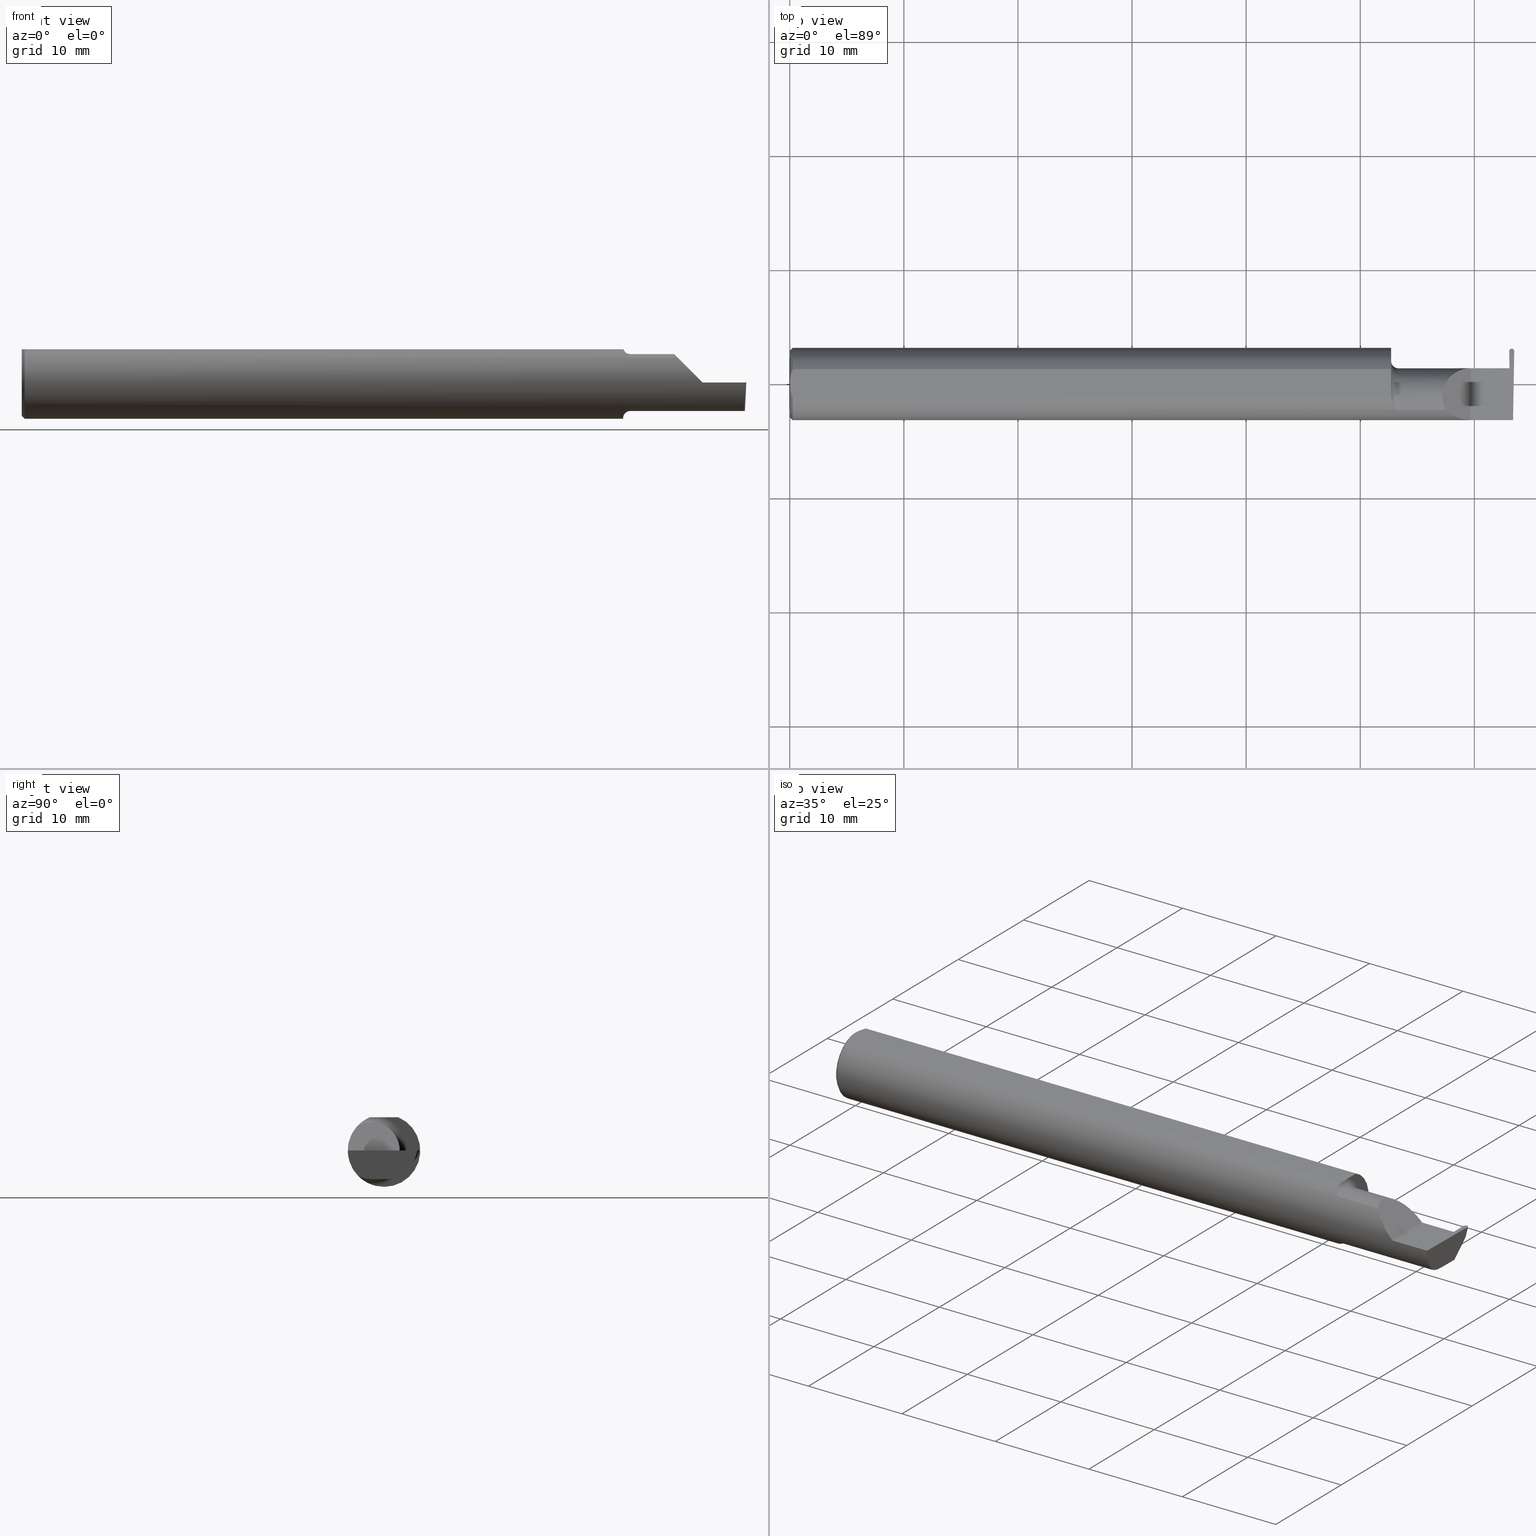
[diagram: canonical four-view strip — front | top / right | iso, engineering-drawing reading convention]
A machine part, canonical four-view strip (front | top / right | iso — engineering-drawing reading convention). The complete STEP part file that produces these views, byte-faithful:
ISO-10303-21;
HEADER;
FILE_DESCRIPTION (( 'STEP AP203' ),
    '1' );
FILE_NAME ('221915-GFR017Q-6.STEP',
    '2024-06-17T18:38:43',
    ( '' ),
    ( '' ),
    'SwSTEP 2.0',
    'SolidWorks 2022',
    '' );
FILE_SCHEMA (( 'CONFIG_CONTROL_DESIGN' ));
ENDSEC;

DATA;
#1 = VECTOR ( 'NONE', #328, 39.37007874015748854 ) ;
#2 = LINE ( 'NONE', #594, #1 ) ;
#3 = CARTESIAN_POINT ( 'NONE',  ( 2.477090476183632539, 0.05376127692546275177, -0.006836134426924101760 ) ) ;
#4 = ORIENTED_EDGE ( 'NONE', *, *, #478, .F. ) ;
#5 = EDGE_CURVE ( 'NONE', #608, #683, #290, .T. ) ;
#6 = EDGE_LOOP ( 'NONE', ( #4, #154, #442, #65, #297 ) ) ;
#7 = CARTESIAN_POINT ( 'NONE',  ( 0.01000000000000042348, 0.000000000000000000, -0.1250000000000000000 ) ) ;
#8 =( LENGTH_UNIT ( ) NAMED_UNIT ( * ) SI_UNIT ( $, .METRE. ) );
#9 = EDGE_LOOP ( 'NONE', ( #541, #293, #372, #595, #111 ) ) ;
#10 = CYLINDRICAL_SURFACE ( 'NONE', #633, 0.09800000000000007316 ) ;
#11 = AXIS2_PLACEMENT_3D ( 'NONE', #23, #81, #519 ) ;
#12 = CARTESIAN_POINT ( 'NONE',  ( 2.076184456069788187, -0.03277259381710939667, 0.1149999999999999356 ) ) ;
#13 = DATE_AND_TIME ( #386, #53 ) ;
#14 = ORIENTED_EDGE ( 'NONE', *, *, #243, .F. ) ;
#15 = EDGE_CURVE ( 'NONE', #87, #37, #658, .T. ) ;
#16 = CC_DESIGN_PERSON_AND_ORGANIZATION_ASSIGNMENT ( #215, #232, ( #20 ) ) ;
#17 = VERTEX_POINT ( 'NONE', #403 ) ;
#18 = EDGE_CURVE ( 'NONE', #452, #495, #387, .T. ) ;
#19 = DIRECTION ( 'NONE',  ( -1.000000000000000000, 1.257036449194457259E-16, -0.000000000000000000 ) ) ;
#20 = SECURITY_CLASSIFICATION ( '', '', #663 ) ;
#21 = CARTESIAN_POINT ( 'NONE',  ( 2.495931522036096695, 0.1129002240869102780, -0.02483591319413773826 ) ) ;
#22 = EDGE_CURVE ( 'NONE', #37, #180, #174, .T. ) ;
#23 = CARTESIAN_POINT ( 'NONE',  ( -3.937007874019685528E-05, 0.1137361372810480054, -0.02400000000000000050 ) ) ;
#24 =( BOUNDED_CURVE ( )  B_SPLINE_CURVE ( 3, ( #63, #266, #222, #600 ),
 .UNSPECIFIED., .F., .T. ) 
 B_SPLINE_CURVE_WITH_KNOTS ( ( 4, 4 ),
 ( 6.253187659403602439, 6.746650124384888869 ),
 .UNSPECIFIED. ) 
 CURVE ( )  GEOMETRIC_REPRESENTATION_ITEM ( )  RATIONAL_B_SPLINE_CURVE ( ( 1.000000000000000000, 0.9798106333074692031, 0.9798106333074692031, 1.000000000000000000 ) ) 
 REPRESENTATION_ITEM ( '' )  );
#25 = CARTESIAN_POINT ( 'NONE',  ( 2.483516143673287768, 0.05399999999999997163, 0.000000000000000000 ) ) ;
#26 = CARTESIAN_POINT ( 'NONE',  ( 2.487309710820275743, -2.433500170848689415, -0.02001865397949318184 ) ) ;
#27 = LINE ( 'NONE', #247, #246 ) ;
#28 = ORIENTED_EDGE ( 'NONE', *, *, #159, .T. ) ;
#29 = VECTOR ( 'NONE', #197, 39.37007874015748854 ) ;
#30 = CC_DESIGN_DATE_AND_TIME_ASSIGNMENT ( #13, #659, ( #376 ) ) ;
#31 = CARTESIAN_POINT ( 'NONE',  ( 2.487116141968339189, -0.04422966076191083007, -0.09800000000000008704 ) ) ;
#32 = CARTESIAN_POINT ( 'NONE',  ( 2.091446811421532104, -0.08721672169474524450, 0.08955973280246720680 ) ) ;
#33 = FACE_OUTER_BOUND ( 'NONE', #686, .T. ) ;
#34 = VERTEX_POINT ( 'NONE', #291 ) ;
#35 = EDGE_CURVE ( 'NONE', #17, #520, #642, .T. ) ;
#36 = CARTESIAN_POINT ( 'NONE',  ( 2.483516143673287768, 0.05399999999999997163, 0.000000000000000000 ) ) ;
#37 = VERTEX_POINT ( 'NONE', #100 ) ;
#38 = CARTESIAN_POINT ( 'NONE',  ( 2.486551887963902807, 0.1129002240869108470, -0.02483591319413719703 ) ) ;
#39 = CARTESIAN_POINT ( 'NONE',  ( 2.085996102358147475, -0.08116363444194581167, 0.09515685373905029276 ) ) ;
#40 = CARTESIAN_POINT ( 'NONE',  ( 0.000000000000000000, 0.000000000000000000, 0.000000000000000000 ) ) ;
#41 = ORIENTED_EDGE ( 'NONE', *, *, #18, .F. ) ;
#42 = LOCAL_TIME ( 11, 38, 43.00000000000000000, #441 ) ;
#43 = ORIENTED_EDGE ( 'NONE', *, *, #605, .F. ) ;
#44 = CIRCLE ( 'NONE', #421, 0.1230000000000000121 ) ;
#45 = DIRECTION ( 'NONE',  ( 1.000000000000000000, 0.000000000000000000, 0.000000000000000000 ) ) ;
#46 = EDGE_LOOP ( 'NONE', ( #329, #674, #392, #99, #661, #49, #498, #106, #235, #418 ) ) ;
#47 = DIRECTION ( 'NONE',  ( -1.000000000000000000, 0.000000000000000000, 1.224646799147352468E-16 ) ) ;
#48 = ORIENTED_EDGE ( 'NONE', *, *, #547, .F. ) ;
#49 = ORIENTED_EDGE ( 'NONE', *, *, #5, .F. ) ;
#50 = CARTESIAN_POINT ( 'NONE',  ( 2.500000000000000000, -0.2500000000000000555, 0.000000000000000000 ) ) ;
#51 =( BOUNDED_CURVE ( )  B_SPLINE_CURVE ( 3, ( #260, #461, #38, #533 ),
 .UNSPECIFIED., .F., .T. ) 
 B_SPLINE_CURVE_WITH_KNOTS ( ( 4, 4 ),
 ( 4.726121454046339210, 6.201952002335866077 ),
 .UNSPECIFIED. ) 
 CURVE ( )  GEOMETRIC_REPRESENTATION_ITEM ( )  RATIONAL_B_SPLINE_CURVE ( ( 1.000000000000000000, 0.8265817722885200336, 0.8265817722885200336, 1.000000000000000000 ) ) 
 REPRESENTATION_ITEM ( '' )  );
#52 = VERTEX_POINT ( 'NONE', #353 ) ;
#53 = LOCAL_TIME ( 11, 38, 43.00000000000000000, #167 ) ;
#54 = EDGE_CURVE ( 'NONE', #611, #532, #51, .T. ) ;
#55 = DIRECTION ( 'NONE',  ( 0.000000000000000000, -0.9455185755993166241, 0.3255681544571570885 ) ) ;
#56 = CONICAL_SURFACE ( 'NONE', #182, 0.1149999999999997274, 0.7853981633974407295 ) ;
#57 = MANIFOLD_SOLID_BREP ( 'Radii', #567 ) ;
#58 = ORIENTED_EDGE ( 'NONE', *, *, #224, .F. ) ;
#59 = CARTESIAN_POINT ( 'NONE',  ( 2.075000000000000178, 0.1249999999999999445, 0.000000000000000000 ) ) ;
#60 = EDGE_CURVE ( 'NONE', #75, #217, #78, .T. ) ;
#61 = APPROVAL_ROLE ( '' ) ;
#62 = ORIENTED_EDGE ( 'NONE', *, *, #289, .T. ) ;
#63 = CARTESIAN_POINT ( 'NONE',  ( 2.493431982762754462, -0.09042045454545434569, -0.08630840862739522223 ) ) ;
#64 = DATE_TIME_ROLE ( 'classification_date' ) ;
#65 = ORIENTED_EDGE ( 'NONE', *, *, #412, .F. ) ;
#66 = CARTESIAN_POINT ( 'NONE',  ( 2.482396552658129973, 0.1181413263005396674, 1.815796599807465209E-17 ) ) ;
#67 = CARTESIAN_POINT ( 'NONE',  ( 2.477329199258169634, 0.05399999999999997163, 0.000000000000000000 ) ) ;
#68 = VECTOR ( 'NONE', #306, 39.37007874015748143 ) ;
#69 = EDGE_CURVE ( 'NONE', #683, #132, #480, .T. ) ;
#70 = APPROVAL_STATUS ( 'not_yet_approved' ) ;
#71 = EDGE_LOOP ( 'NONE', ( #463, #48, #373 ) ) ;
#72 = APPROVAL_STATUS ( 'not_yet_approved' ) ;
#73 = DIRECTION ( 'NONE',  ( -1.000000000000000000, -0.000000000000000000, -0.000000000000000000 ) ) ;
#74 = CARTESIAN_POINT ( 'NONE',  ( 2.498829776079762421, 0.1072077918165300486, -0.03052834546451806477 ) ) ;
#75 = VERTEX_POINT ( 'NONE', #473 ) ;
#76 = ADVANCED_FACE ( 'NONE', ( #629 ), #692, .T. ) ;
#77 =( BOUNDED_CURVE ( )  B_SPLINE_CURVE ( 3, ( #620, #578, #568, #631 ),
 .UNSPECIFIED., .F., .T. ) 
 B_SPLINE_CURVE_WITH_KNOTS ( ( 4, 4 ),
 ( 5.789722842198293584, 7.853981633974482790 ),
 .UNSPECIFIED. ) 
 CURVE ( )  GEOMETRIC_REPRESENTATION_ITEM ( )  RATIONAL_B_SPLINE_CURVE ( ( 1.000000000000000000, 0.6753281001527238203, 0.6753281001527238203, 1.000000000000000000 ) ) 
 REPRESENTATION_ITEM ( '' )  );
#78 = CIRCLE ( 'NONE', #402, 0.1250000000000000000 ) ;
#79 = DIRECTION ( 'NONE',  ( -0.01745240643727528213, -0.9998476951563914916, 0.000000000000000000 ) ) ;
#80 =( BOUNDED_CURVE ( )  B_SPLINE_CURVE ( 3, ( #230, #662, #173, #426 ),
 .UNSPECIFIED., .F., .T. ) 
 B_SPLINE_CURVE_WITH_KNOTS ( ( 4, 4 ),
 ( 1.677524580234106333, 3.253450286950926529 ),
 .UNSPECIFIED. ) 
 CURVE ( )  GEOMETRIC_REPRESENTATION_ITEM ( )  RATIONAL_B_SPLINE_CURVE ( ( 1.000000000000000000, 0.8035272986452476340, 0.8035272986452476340, 1.000000000000000000 ) ) 
 REPRESENTATION_ITEM ( '' )  );
#81 = DIRECTION ( 'NONE',  ( 0.000000000000000000, -0.7071067811865514585, 0.7071067811865435759 ) ) ;
#82 = ORIENTED_EDGE ( 'NONE', *, *, #274, .T. ) ;
#83 = CARTESIAN_POINT ( 'NONE',  ( 2.487115857322145018, -0.04400000000000009459, -0.09800000000000008704 ) ) ;
#84 = CARTESIAN_POINT ( 'NONE',  ( 2.487625705767810835, 0.09065177128393964168, -0.09104186683305189043 ) ) ;
#85 = EDGE_CURVE ( 'NONE', #405, #520, #640, .T. ) ;
#86 = CARTESIAN_POINT ( 'NONE',  ( 2.491241705000000195, 0.1136654917638221379, -0.02407064551722588180 ) ) ;
#87 = VERTEX_POINT ( 'NONE', #141 ) ;
#88 = CARTESIAN_POINT ( 'NONE',  ( 2.080932841370987774, -0.07048791403321993942, -0.1034389270157552027 ) ) ;
#89 = CARTESIAN_POINT ( 'NONE',  ( 2.084055883886138272, -0.07758562614434452720, 0.09811804109501713611 ) ) ;
#90 = CARTESIAN_POINT ( 'NONE',  ( 2.491241705000000195, 0.1136654917638221379, -0.02407064551722588180 ) ) ;
#91 = VECTOR ( 'NONE', #314, 39.37007874015748143 ) ;
#92 = EDGE_CURVE ( 'NONE', #524, #590, #152, .T. ) ;
#93 = VECTOR ( 'NONE', #219, 39.37007874015748143 ) ;
#94 = PLANE ( 'NONE',  #432 ) ;
#95 = PLANE ( 'NONE',  #657 ) ;
#96 = ORIENTED_EDGE ( 'NONE', *, *, #139, .T. ) ;
#97 = CARTESIAN_POINT ( 'NONE',  ( 0.006956794985978487743, -0.04122489957750442163, 0.1149999999999999356 ) ) ;
#98 = DIRECTION ( 'NONE',  ( 0.000000000000000000, 0.000000000000000000, -1.000000000000000000 ) ) ;
#99 = ORIENTED_EDGE ( 'NONE', *, *, #450, .T. ) ;
#100 = CARTESIAN_POINT ( 'NONE',  ( 2.350000000000000089, -0.1250000000000000278, 1.836970198721028825E-17 ) ) ;
#101 = EDGE_CURVE ( 'NONE', #405, #120, #244, .T. ) ;
#102 = CARTESIAN_POINT ( 'NONE',  ( 0.000000000000000000, 0.000000000000000000, 0.000000000000000000 ) ) ;
#103 =( BOUNDED_CURVE ( )  B_SPLINE_CURVE ( 3, ( #251, #457, #414, #86 ),
 .UNSPECIFIED., .F., .F. ) 
 B_SPLINE_CURVE_WITH_KNOTS ( ( 4, 4 ),
 ( 1.570796326794872355, 1.670891485222194550 ),
 .UNSPECIFIED. ) 
 CURVE ( )  GEOMETRIC_REPRESENTATION_ITEM ( )  RATIONAL_B_SPLINE_CURVE ( ( 1.000000000000000000, 0.9991652541966116186, 0.9991652541966116186, 1.000000000000000000 ) ) 
 REPRESENTATION_ITEM ( '' )  );
#104 = EDGE_LOOP ( 'NONE', ( #382, #453, #641 ) ) ;
#105 = DIRECTION ( 'NONE',  ( -1.000000000000000000, 1.257036449194457259E-16, -0.000000000000000000 ) ) ;
#106 = ORIENTED_EDGE ( 'NONE', *, *, #85, .F. ) ;
#107 = DIRECTION ( 'NONE',  ( -1.000000000000000000, 1.257036449194457259E-16, -0.000000000000000000 ) ) ;
#108 = EDGE_CURVE ( 'NONE', #560, #472, #485, .T. ) ;
#109 = ORIENTED_EDGE ( 'NONE', *, *, #128, .T. ) ;
#110 = DIRECTION ( 'NONE',  ( -0.03701368837992363020, -0.7066222423871550973, -0.7066222423871629799 ) ) ;
#111 = ORIENTED_EDGE ( 'NONE', *, *, #464, .T. ) ;
#112 = ADVANCED_FACE ( 'NONE', ( #370 ), #94, .T. ) ;
#113 = AXIS2_PLACEMENT_3D ( 'NONE', #282, #612, #511 ) ;
#114 = FACE_OUTER_BOUND ( 'NONE', #252, .T. ) ;
#115 = VECTOR ( 'NONE', #133, 39.37007874015748854 ) ;
#116 = APPROVAL_STATUS ( 'not_yet_approved' ) ;
#117 = VERTEX_POINT ( 'NONE', #308 ) ;
#118 = CARTESIAN_POINT ( 'NONE',  ( -3.937007874019685528E-05, 0.1219999999999999835, 0.000000000000000000 ) ) ;
#119 = PERSON_AND_ORGANIZATION_ROLE ( 'creator' ) ;
#120 = VERTEX_POINT ( 'NONE', #420 ) ;
#121 = CARTESIAN_POINT ( 'NONE',  ( 2.485980426908312779, 0.1220000000000002333, 1.771906798517136265E-17 ) ) ;
#122 = FACE_OUTER_BOUND ( 'NONE', #396, .T. ) ;
#123 = ORIENTED_EDGE ( 'NONE', *, *, #265, .F. ) ;
#124 = AXIS2_PLACEMENT_3D ( 'NONE', #36, #587, #529 ) ;
#125 = DATE_AND_TIME ( #346, #42 ) ;
#126 = ORIENTED_EDGE ( 'NONE', *, *, #101, .F. ) ;
#127 = ORIENTED_EDGE ( 'NONE', *, *, #616, .T. ) ;
#128 = EDGE_CURVE ( 'NONE', #696, #87, #660, .T. ) ;
#129 = PRODUCT_DEFINITION_SHAPE ( 'NONE', 'NONE',  #376 ) ;
#130 = VECTOR ( 'NONE', #315, 39.37007874015748854 ) ;
#131 = LINE ( 'NONE', #140, #281 ) ;
#132 = VERTEX_POINT ( 'NONE', #634 ) ;
#133 = DIRECTION ( 'NONE',  ( -0.03549161113179514354, 0.03487750912278164694, 0.9987611851171729338 ) ) ;
#134 = CARTESIAN_POINT ( 'NONE',  ( 2.477170050541811719, 0.05384085128364182737, -0.004557422951282729881 ) ) ;
#135 = LINE ( 'NONE', #574, #559 ) ;
#136 = ORIENTED_EDGE ( 'NONE', *, *, #162, .T. ) ;
#137 = CARTESIAN_POINT ( 'NONE',  ( 2.098259114367880596, -0.09042045454545440120, -0.08630840862739518060 ) ) ;
#138 = DIRECTION ( 'NONE',  ( 1.000000000000000000, 0.000000000000000000, 0.000000000000000000 ) ) ;
#139 = EDGE_CURVE ( 'NONE', #75, #452, #510, .T. ) ;
#140 = CARTESIAN_POINT ( 'NONE',  ( 2.350000000000000089, -0.2500000000000000555, 1.836970198721028825E-17 ) ) ;
#141 = CARTESIAN_POINT ( 'NONE',  ( 2.495842809704562626, -0.1250000000000000000, 0.000000000000000000 ) ) ;
#142 = DIRECTION ( 'NONE',  ( 0.000000000000000000, 0.000000000000000000, 1.000000000000000000 ) ) ;
#143 = CARTESIAN_POINT ( 'NONE',  ( 2.077426556614085928, -0.05801934803182533240, 0.1111534264545090966 ) ) ;
#144 = DIRECTION ( 'NONE',  ( 1.000000000000000000, 0.000000000000000000, 0.000000000000000000 ) ) ;
#145 = AXIS2_PLACEMENT_3D ( 'NONE', #26, #254, #693 ) ;
#146 = CIRCLE ( 'NONE', #270, 0.1149999999999997274 ) ;
#147 = VERTEX_POINT ( 'NONE', #385 ) ;
#148 = CARTESIAN_POINT ( 'NONE',  ( 2.493431982762754462, -0.09042045454545434569, -0.08630840862739522223 ) ) ;
#149 = CARTESIAN_POINT ( 'NONE',  ( 2.672413070268786939, -0.04400000000000041378, -0.09800000000000008704 ) ) ;
#150 = ORIENTED_EDGE ( 'NONE', *, *, #345, .F. ) ;
#151 = EDGE_CURVE ( 'NONE', #117, #611, #499, .T. ) ;
#152 = LINE ( 'NONE', #521, #445 ) ;
#153 = CARTESIAN_POINT ( 'NONE',  ( 2.482484743930750248, 0.1130888516759625262, 0.000000000000000000 ) ) ;
#154 = ORIENTED_EDGE ( 'NONE', *, *, #534, .F. ) ;
#155 = DIRECTION ( 'NONE',  ( 1.000000000000000000, -1.257036449194457259E-16, 0.000000000000000000 ) ) ;
#156 = ORIENTED_EDGE ( 'NONE', *, *, #274, .F. ) ;
#157 = AXIS2_PLACEMENT_3D ( 'NONE', #550, #334, #434 ) ;
#158 = CARTESIAN_POINT ( 'NONE',  ( 2.076278290187167919, -0.04898979485481608914, 0.1149999999999999217 ) ) ;
#159 = EDGE_CURVE ( 'NONE', #696, #147, #24, .T. ) ;
#160 = ORIENTED_EDGE ( 'NONE', *, *, #412, .T. ) ;
#161 = LINE ( 'NONE', #324, #454 ) ;
#162 = EDGE_CURVE ( 'NONE', #650, #560, #669, .T. ) ;
#163 = FACE_OUTER_BOUND ( 'NONE', #509, .T. ) ;
#164 = ORIENTED_EDGE ( 'NONE', *, *, #85, .T. ) ;
#165 = CARTESIAN_POINT ( 'NONE',  ( 1.541666659510484467E-16, -0.008419750986449443114, 0.1149999999999999356 ) ) ;
#166 = LINE ( 'NONE', #287, #93 ) ;
#167 = COORDINATED_UNIVERSAL_TIME_OFFSET ( 8, 0, .BEHIND. ) ;
#168 = VERTEX_POINT ( 'NONE', #700 ) ;
#169 = LINE ( 'NONE', #496, #474 ) ;
#170 = VECTOR ( 'NONE', #486, 39.37007874015748143 ) ;
#171 = ORIENTED_EDGE ( 'NONE', *, *, #597, .F. ) ;
#172 = EDGE_CURVE ( 'NONE', #120, #225, #644, .T. ) ;
#173 = CARTESIAN_POINT ( 'NONE',  ( 2.496502983091687611, 0.1220000000000001916, -1.771906798517135649E-17 ) ) ;
#174 =( BOUNDED_CURVE ( )  B_SPLINE_CURVE ( 3, ( #178, #295, #516, #571 ),
 .UNSPECIFIED., .F., .T. ) 
 B_SPLINE_CURVE_WITH_KNOTS ( ( 4, 4 ),
 ( 4.712388980384689674, 5.474523801125204869 ),
 .UNSPECIFIED. ) 
 CURVE ( )  GEOMETRIC_REPRESENTATION_ITEM ( )  RATIONAL_B_SPLINE_CURVE ( ( 1.000000000000000000, 0.9521787881681385013, 0.9521787881681385013, 1.000000000000000000 ) ) 
 REPRESENTATION_ITEM ( '' )  );
#175 = ADVANCED_FACE ( 'NONE', ( #383 ), #10, .T. ) ;
#176 = COORDINATED_UNIVERSAL_TIME_OFFSET ( 8, 0, .BEHIND. ) ;
#177 = ORIENTED_EDGE ( 'NONE', *, *, #172, .T. ) ;
#178 = CARTESIAN_POINT ( 'NONE',  ( 2.350000000000000089, -0.1250000000000000278, 1.836970198721028825E-17 ) ) ;
#179 = CARTESIAN_POINT ( 'NONE',  ( 0.01000000000000042348, 0.000000000000000000, 0.000000000000000000 ) ) ;
#180 = VERTEX_POINT ( 'NONE', #389 ) ;
#181 = CIRCLE ( 'NONE', #237, 0.1250000000000000000 ) ;
#182 = AXIS2_PLACEMENT_3D ( 'NONE', #207, #144, #368 ) ;
#183 = CC_DESIGN_PERSON_AND_ORGANIZATION_ASSIGNMENT ( #613, #288, ( #656 ) ) ;
#184 = EDGE_CURVE ( 'NONE', #472, #168, #181, .T. ) ;
#185 = LINE ( 'NONE', #458, #68 ) ;
#186 = PRODUCT_RELATED_PRODUCT_CATEGORY ( 'detail', '', ( #351 ) ) ;
#187 = LINE ( 'NONE', #627, #675 ) ;
#188 = EDGE_CURVE ( 'NONE', #650, #180, #226, .T. ) ;
#189 = CARTESIAN_POINT ( 'NONE',  ( 0.01000000000000042348, 0.000000000000000000, 0.000000000000000000 ) ) ;
#190 = DIRECTION ( 'NONE',  ( -1.000000000000000000, -0.000000000000000000, -0.000000000000000000 ) ) ;
#191 = LINE ( 'NONE', #407, #408 ) ;
#192 = CARTESIAN_POINT ( 'NONE',  ( 2.096593478233292007, -0.08999923832592932049, -0.08675238105120941512 ) ) ;
#193 = DIRECTION ( 'NONE',  ( 0.000000000000000000, 0.000000000000000000, 1.000000000000000000 ) ) ;
#194 = CARTESIAN_POINT ( 'NONE',  ( 2.075000000000000178, -0.02763636363636362211, -0.1219066503721543265 ) ) ;
#195 =( BOUNDED_CURVE ( )  B_SPLINE_CURVE ( 3, ( #340, #121, #66, #280 ),
 .UNSPECIFIED., .F., .F. ) 
 B_SPLINE_CURVE_WITH_KNOTS ( ( 4, 4 ),
 ( 6.171327673818449711, 7.747253380535275902 ),
 .UNSPECIFIED. ) 
 CURVE ( )  GEOMETRIC_REPRESENTATION_ITEM ( )  RATIONAL_B_SPLINE_CURVE ( ( 1.000000000000000000, 0.8035272986452463018, 0.8035272986452463018, 1.000000000000000000 ) ) 
 REPRESENTATION_ITEM ( '' )  );
#196 = ORIENTED_EDGE ( 'NONE', *, *, #645, .T. ) ;
#197 = DIRECTION ( 'NONE',  ( -0.03549161113179514354, 0.03487750912278164694, 0.9987611851171729338 ) ) ;
#198 = PLANE ( 'NONE',  #294 ) ;
#199 = ADVANCED_FACE ( 'NONE', ( #114 ), #542, .F. ) ;
#200 = VECTOR ( 'NONE', #655, 39.37007874015748854 ) ;
#201 = ORIENTED_EDGE ( 'NONE', *, *, #562, .T. ) ;
#202 = CARTESIAN_POINT ( 'NONE',  ( 2.493862026000344123, -0.1128945894460738480, -0.06276352435079120273 ) ) ;
#203 = B_SPLINE_CURVE_WITH_KNOTS ( 'NONE', 3,
 ( #601, #501, #12, #341, #508, #231 ),
 .UNSPECIFIED., .F., .F.,
 ( 4, 2, 4 ),
 ( 0.009319464280412734225, 0.009934044568948269954, 0.01054862485748380568 ),
 .UNSPECIFIED. ) ;
#204 = ORIENTED_EDGE ( 'NONE', *, *, #285, .T. ) ;
#205 = DIRECTION ( 'NONE',  ( 0.000000000000000000, 0.9455185755993170682, -0.3255681544571562558 ) ) ;
#206 = CARTESIAN_POINT ( 'NONE',  ( 1.642610067308552155E-16, 0.01684316307400865464, 0.1149999999999999217 ) ) ;
#207 = CARTESIAN_POINT ( 'NONE',  ( 0.000000000000000000, 0.000000000000000000, 0.000000000000000000 ) ) ;
#208 = VERTEX_POINT ( 'NONE', #158 ) ;
#209 = ADVANCED_FACE ( 'NONE', ( #278 ), #380, .F. ) ;
#210 = LINE ( 'NONE', #327, #259 ) ;
#211 = CC_DESIGN_APPROVAL ( #455, ( #656 ) ) ;
#212 = CARTESIAN_POINT ( 'NONE',  ( 2.482486636428674398, 0.1127397658540112979, 0.0001202773598626459084 ) ) ;
#213 = ADVANCED_FACE ( 'NONE', ( #648 ), #598, .T. ) ;
#214 = ADVANCED_BREP_SHAPE_REPRESENTATION ( '221915-GFR017Q-6', ( #57, #236 ), #343 ) ;
#215 = PERSON_AND_ORGANIZATION ( #311, #459 ) ;
#216 = DESIGN_CONTEXT ( 'detailed design', #397, 'design' ) ;
#217 = VERTEX_POINT ( 'NONE', #7 ) ;
#218 = CARTESIAN_POINT ( 'NONE',  ( -3.937007874019685528E-05, 0.03973613728104874454, -0.09800000000000008704 ) ) ;
#219 = DIRECTION ( 'NONE',  ( -1.000000000000000000, -0.000000000000000000, -0.000000000000000000 ) ) ;
#220 = PERSON_AND_ORGANIZATION_ROLE ( 'design_supplier' ) ;
#221 = ORIENTED_EDGE ( 'NONE', *, *, #15, .T. ) ;
#222 = CARTESIAN_POINT ( 'NONE',  ( 2.493549648562250809, -0.06028551311893220327, -0.09800000000000001765 ) ) ;
#223 = LENGTH_MEASURE_WITH_UNIT ( LENGTH_MEASURE( 0.02539999999999999897 ), #8 );
#224 = EDGE_CURVE ( 'NONE', #326, #683, #169, .T. ) ;
#225 = VERTEX_POINT ( 'NONE', #337 ) ;
#226 = LINE ( 'NONE', #493, #305 ) ;
#227 = VECTOR ( 'NONE', #431, 39.37007874015748143 ) ;
#228 = APPROVAL_DATE_TIME ( #335, #455 ) ;
#229 = EDGE_LOOP ( 'NONE', ( #428, #41, #248, #316 ) ) ;
#230 = CARTESIAN_POINT ( 'NONE',  ( 2.499991849855255133, 0.1126983510377570219, 0.000000000000000000 ) ) ;
#231 = CARTESIAN_POINT ( 'NONE',  ( 2.075000000000000178, -0.0003651515414569473403, 0.1149999999999999217 ) ) ;
#232 = PERSON_AND_ORGANIZATION_ROLE ( 'classification_officer' ) ;
#233 = ORIENTED_EDGE ( 'NONE', *, *, #679, .T. ) ;
#234 = APPROVAL ( #70, 'UNSPECIFIED' ) ;
#235 = ORIENTED_EDGE ( 'NONE', *, *, #679, .F. ) ;
#236 = AXIS2_PLACEMENT_3D ( 'NONE', #309, #142, #530 ) ;
#237 = AXIS2_PLACEMENT_3D ( 'NONE', #271, #447, #591 ) ;
#238 = EDGE_CURVE ( 'NONE', #52, #524, #553, .T. ) ;
#239 = AXIS2_PLACEMENT_3D ( 'NONE', #275, #19, #652 ) ;
#240 = LINE ( 'NONE', #404, #526 ) ;
#241 = CARTESIAN_POINT ( 'NONE',  ( 2.491130782529545673, 0.1219999999999999835, 0.000000000000000000 ) ) ;
#242 = CARTESIAN_POINT ( 'NONE',  ( 0.000000000000000000, 3.414809992080329023E-17, 0.1149999999999999217 ) ) ;
#243 = EDGE_CURVE ( 'NONE', #34, #472, #44, .T. ) ;
#244 = LINE ( 'NONE', #31, #321 ) ;
#245 = CARTESIAN_POINT ( 'NONE',  ( 2.089945076695470583, -0.08578123596776227044, 0.09094459933486044589 ) ) ;
#246 = VECTOR ( 'NONE', #79, 39.37007874015747433 ) ;
#247 = CARTESIAN_POINT ( 'NONE',  ( 2.499998666069249253, 0.1130888516759625262, 0.000000000000000000 ) ) ;
#248 = ORIENTED_EDGE ( 'NONE', *, *, #398, .T. ) ;
#249 = DIRECTION ( 'NONE',  ( 0.000000000000000000, 0.000000000000000000, 1.000000000000000000 ) ) ;
#250 = FACE_OUTER_BOUND ( 'NONE', #664, .T. ) ;
#251 = CARTESIAN_POINT ( 'NONE',  ( 2.491241705000000195, 0.1210669986517045327, -0.002709632664605812237 ) ) ;
#252 = EDGE_LOOP ( 'NONE', ( #160, #437, #255 ) ) ;
#253 = CARTESIAN_POINT ( 'NONE',  ( 2.483516143673287768, 0.05399999999999997163, 0.000000000000000000 ) ) ;
#254 = DIRECTION ( 'NONE',  ( 0.9993699743034455407, 0.001238639365660611094, 0.03546999060124707975 ) ) ;
#255 = ORIENTED_EDGE ( 'NONE', *, *, #92, .T. ) ;
#256 = DIRECTION ( 'NONE',  ( 1.000000000000000000, -0.000000000000000000, -0.000000000000000000 ) ) ;
#257 = CARTESIAN_POINT ( 'NONE',  ( 2.483516143673287768, 0.05399999999999997163, 0.000000000000000000 ) ) ;
#258 = ORIENTED_EDGE ( 'NONE', *, *, #54, .T. ) ;
#259 = VECTOR ( 'NONE', #110, 39.37007874015748143 ) ;
#260 = CARTESIAN_POINT ( 'NONE',  ( 2.484054773108133052, 0.09954970949977201555, -0.03818642778127615683 ) ) ;
#261 = CARTESIAN_POINT ( 'NONE',  ( 2.075000000000000178, 0.05376127692546273096, -0.006836134426925153870 ) ) ;
#262 = CARTESIAN_POINT ( 'NONE',  ( 2.075000000000000178, -0.04400000000000004602, 0.000000000000000000 ) ) ;
#263 = FACE_OUTER_BOUND ( 'NONE', #617, .T. ) ;
#264 = ORIENTED_EDGE ( 'NONE', *, *, #616, .F. ) ;
#265 = EDGE_CURVE ( 'NONE', #17, #611, #161, .T. ) ;
#266 = CARTESIAN_POINT ( 'NONE',  ( 2.493412911089820660, -0.07607783494366283927, -0.09402249966297451800 ) ) ;
#267 = LINE ( 'NONE', #381, #614 ) ;
#268 = AXIS2_PLACEMENT_3D ( 'NONE', #118, #55, #330 ) ;
#269 = ORIENTED_EDGE ( 'NONE', *, *, #172, .F. ) ;
#270 = AXIS2_PLACEMENT_3D ( 'NONE', #40, #363, #476 ) ;
#271 = CARTESIAN_POINT ( 'NONE',  ( 2.075000000000000178, 0.000000000000000000, 0.000000000000000000 ) ) ;
#272 = EDGE_LOOP ( 'NONE', ( #654, #109, #221, #647, #628, #425, #446, #599, #322, #43, #336, #546 ) ) ;
#273 = DIRECTION ( 'NONE',  ( 1.257036449194457259E-16, 1.000000000000000000, 0.000000000000000000 ) ) ;
#274 = EDGE_CURVE ( 'NONE', #691, #225, #210, .T. ) ;
#275 = CARTESIAN_POINT ( 'NONE',  ( 2.100000000000000089, -0.04400000000000004602, 0.000000000000000000 ) ) ;
#276 = PERSON_AND_ORGANIZATION ( #311, #459 ) ;
#277 = ORIENTED_EDGE ( 'NONE', *, *, #398, .F. ) ;
#278 = FACE_OUTER_BOUND ( 'NONE', #279, .T. ) ;
#279 = EDGE_LOOP ( 'NONE', ( #603, #204, #171, #484, #58, #449, #549, #312, #544 ) ) ;
#280 = CARTESIAN_POINT ( 'NONE',  ( 2.482491560144744369, 0.1126983510377570080, 0.000000000000000000 ) ) ;
#281 = VECTOR ( 'NONE', #514, 39.37007874015748143 ) ;
#282 = CARTESIAN_POINT ( 'NONE',  ( 2.499998666069249253, 0.1130888516759625262, 0.000000000000000000 ) ) ;
#283 = APPROVAL_ROLE ( '' ) ;
#284 = ORIENTED_EDGE ( 'NONE', *, *, #18, .T. ) ;
#285 = EDGE_CURVE ( 'NONE', #524, #117, #195, .T. ) ;
#286 = CC_DESIGN_DATE_AND_TIME_ASSIGNMENT ( #561, #64, ( #20 ) ) ;
#287 = CARTESIAN_POINT ( 'NONE',  ( 2.672413070268786939, -0.04400000000000041378, -0.09800000000000008704 ) ) ;
#288 = PERSON_AND_ORGANIZATION_ROLE ( 'creator' ) ;
#289 = EDGE_CURVE ( 'NONE', #225, #147, #506, .T. ) ;
#290 = B_SPLINE_CURVE_WITH_KNOTS ( 'NONE', 3,
 ( #3, #134, #565, #67 ),
 .UNSPECIFIED., .F., .F.,
 ( 4, 4 ),
 ( 0.000000000000000000, 1.000000000000000000 ),
 .UNSPECIFIED. ) ;
#291 = CARTESIAN_POINT ( 'NONE',  ( 2.075000000000000178, -0.0003651515414569473403, 0.1149999999999999217 ) ) ;
#292 = DIRECTION ( 'NONE',  ( 0.7071067811865530128, 0.000000000000000000, -0.7071067811865421326 ) ) ;
#293 = ORIENTED_EDGE ( 'NONE', *, *, #151, .F. ) ;
#294 = AXIS2_PLACEMENT_3D ( 'NONE', #153, #300, #354 ) ;
#295 = CARTESIAN_POINT ( 'NONE',  ( 2.317450832343515899, -0.1250000000000000278, 0.03254916765648410010 ) ) ;
#296 = CC_DESIGN_PERSON_AND_ORGANIZATION_ASSIGNMENT ( #512, #220, ( #656 ) ) ;
#297 = ORIENTED_EDGE ( 'NONE', *, *, #313, .F. ) ;
#298 = CARTESIAN_POINT ( 'NONE',  ( 2.100000000000000089, -0.09042045454545434569, -0.08630840862739518060 ) ) ;
#299 = CARTESIAN_POINT ( 'NONE',  ( 2.485685536098598103, 0.04997501107658527258, -0.06098225869090297124 ) ) ;
#300 = DIRECTION ( 'NONE',  ( 0.9992386149554827179, 0.01744177490282417323, 0.03489949670250104552 ) ) ;
#301 = CARTESIAN_POINT ( 'NONE',  ( 2.491241705000000195, 0.1136654917638221379, -0.02407064551722588180 ) ) ;
#302 = CARTESIAN_POINT ( 'NONE',  ( 2.075000000000000178, -0.02763636363636362211, -0.1219066503721543265 ) ) ;
#303 = DIMENSIONAL_EXPONENTS ( 1.000000000000000000, 0.000000000000000000, 0.000000000000000000, 0.000000000000000000, 0.000000000000000000, 0.000000000000000000, 0.000000000000000000 ) ;
#304 = DIRECTION ( 'NONE',  ( 1.000000000000000000, 0.000000000000000000, 0.000000000000000000 ) ) ;
#305 = VECTOR ( 'NONE', #155, 39.37007874015748143 ) ;
#306 = DIRECTION ( 'NONE',  ( 1.000000000000000000, 0.000000000000000000, 0.000000000000000000 ) ) ;
#307 = EDGE_LOOP ( 'NONE', ( #233, #469, #177, #62 ) ) ;
#308 = CARTESIAN_POINT ( 'NONE',  ( 2.482491560144744369, 0.1126983510377570080, 0.000000000000000000 ) ) ;
#309 = CARTESIAN_POINT ( 'NONE',  ( 0.000000000000000000, 0.000000000000000000, 0.000000000000000000 ) ) ;
#310 = CARTESIAN_POINT ( 'NONE',  ( 0.003880275146595849479, 0.03337499979622342988, 0.1149999999999999217 ) ) ;
#311 = PERSON ( 'UNSPECIFIED', 'UNSPECIFIED', 'UNSPECIFIED', ('UNSPECIFIED'), ('UNSPECIFIED'), ('UNSPECIFIED') ) ;
#312 = ORIENTED_EDGE ( 'NONE', *, *, #593, .F. ) ;
#313 = EDGE_CURVE ( 'NONE', #388, #590, #80, .T. ) ;
#314 = DIRECTION ( 'NONE',  ( 1.000000000000000000, -0.000000000000000000, -0.000000000000000000 ) ) ;
#315 = DIRECTION ( 'NONE',  ( -0.03867711768362981639, -0.3253245514560478280, -0.9448111011136606230 ) ) ;
#316 = ORIENTED_EDGE ( 'NONE', *, *, #685, .F. ) ;
#317 = CARTESIAN_POINT ( 'NONE',  ( 2.495842809704562626, -0.1250000000000000000, 0.000000000000000000 ) ) ;
#318 = LINE ( 'NONE', #84, #130 ) ;
#319 = APPROVAL_PERSON_ORGANIZATION ( #276, #320, #61 ) ;
#320 = APPROVAL ( #116, 'UNSPECIFIED' ) ;
#321 = VECTOR ( 'NONE', #625, 39.37007874015748854 ) ;
#322 = ORIENTED_EDGE ( 'NONE', *, *, #685, .T. ) ;
#323 =( BOUNDED_CURVE ( )  B_SPLINE_CURVE ( 3, ( #90, #21, #74, #456 ),
 .UNSPECIFIED., .F., .F. ) 
 B_SPLINE_CURVE_WITH_KNOTS ( ( 4, 4 ),
 ( 3.222825958433578108, 4.698656506723036586 ),
 .UNSPECIFIED. ) 
 CURVE ( )  GEOMETRIC_REPRESENTATION_ITEM ( )  RATIONAL_B_SPLINE_CURVE ( ( 1.000000000000000000, 0.8265817722885354657, 0.8265817722885354657, 1.000000000000000000 ) ) 
 REPRESENTATION_ITEM ( '' )  );
#324 = CARTESIAN_POINT ( 'NONE',  ( 2.479909448124860472, 0.1786874275525325573, 0.04095129027148528000 ) ) ;
#325 = ADVANCED_FACE ( 'NONE', ( #609 ), #95, .F. ) ;
#326 = VERTEX_POINT ( 'NONE', #531 ) ;
#327 = CARTESIAN_POINT ( 'NONE',  ( 2.495747786320908546, 0.04837003179481734472, -0.08936610548623138972 ) ) ;
#328 = DIRECTION ( 'NONE',  ( -0.02596452850600449586, 0.7068683906002055650, 0.7068683906002134476 ) ) ;
#329 = ORIENTED_EDGE ( 'NONE', *, *, #502, .T. ) ;
#330 = DIRECTION ( 'NONE',  ( 0.000000000000000000, -0.3255681544571570885, -0.9455185755993166241 ) ) ;
#331 = AXIS2_PLACEMENT_3D ( 'NONE', #50, #604, #47 ) ;
#332 = ORIENTED_EDGE ( 'NONE', *, *, #265, .T. ) ;
#333 = EDGE_CURVE ( 'NONE', #520, #608, #626, .T. ) ;
#334 = DIRECTION ( 'NONE',  ( -1.000000000000000000, 1.257036449194457259E-16, -0.000000000000000000 ) ) ;
#335 = DATE_AND_TIME ( #602, #525 ) ;
#336 = ORIENTED_EDGE ( 'NONE', *, *, #184, .F. ) ;
#337 = CARTESIAN_POINT ( 'NONE',  ( 2.495295532964209695, 0.03973613728104874454, -0.09800000000000008704 ) ) ;
#338 = SHAPE_DEFINITION_REPRESENTATION ( #129, #214 ) ;
#339 = ORIENTED_EDGE ( 'NONE', *, *, #289, .F. ) ;
#340 = CARTESIAN_POINT ( 'NONE',  ( 2.491130782529545673, 0.1219999999999999835, 0.000000000000000000 ) ) ;
#341 = CARTESIAN_POINT ( 'NONE',  ( 2.075474906351709059, -0.01657217611495833895, 0.1149999999999999217 ) ) ;
#342 = VERTEX_POINT ( 'NONE', #589 ) ;
#343 =( GEOMETRIC_REPRESENTATION_CONTEXT ( 3 ) GLOBAL_UNCERTAINTY_ASSIGNED_CONTEXT ( ( #491 ) ) GLOBAL_UNIT_ASSIGNED_CONTEXT ( ( #444, #606, #619 ) ) REPRESENTATION_CONTEXT ( 'NONE', 'WORKASPACE' ) );
#344 = AXIS2_PLACEMENT_3D ( 'NONE', #59, #596, #273 ) ;
#345 = EDGE_CURVE ( 'NONE', #520, #132, #622, .T. ) ;
#346 = CALENDAR_DATE ( 2024, 17, 6 ) ;
#347 = ORIENTED_EDGE ( 'NONE', *, *, #333, .T. ) ;
#348 = CARTESIAN_POINT ( 'NONE',  ( 0.000000000000000000, 0.000000000000000000, 0.000000000000000000 ) ) ;
#349 = PLANE ( 'NONE',  #460 ) ;
#350 = ADVANCED_FACE ( 'NONE', ( #475 ), #538, .T. ) ;
#351 = PRODUCT ( '221915-GFR017Q-6', '221915-GFR017Q-6', '', ( #583 ) ) ;
#352 = VECTOR ( 'NONE', #572, 39.37007874015748143 ) ;
#353 = CARTESIAN_POINT ( 'NONE',  ( 2.491241705000000195, 0.1210669986517045327, -0.002709632664605812237 ) ) ;
#354 = DIRECTION ( 'NONE',  ( 0.03490480639812536257, 0.000000000000000000, -0.9993906415863165194 ) ) ;
#355 = DIRECTION ( 'NONE',  ( 0.03867711768362983027, 0.3253245514560478280, 0.9448111011136606230 ) ) ;
#356 = CARTESIAN_POINT ( 'NONE',  ( 2.093701570004388390, -0.08871861273376824286, -0.08806160498138394799 ) ) ;
#357 = FACE_OUTER_BOUND ( 'NONE', #536, .T. ) ;
#358 = CC_DESIGN_PERSON_AND_ORGANIZATION_ASSIGNMENT ( #503, #119, ( #376 ) ) ;
#359 = CARTESIAN_POINT ( 'NONE',  ( 2.075000000000000622, -0.04088126997068480123, -0.1189040164168497365 ) ) ;
#360 = PERSON_AND_ORGANIZATION ( #311, #459 ) ;
#361 = DIRECTION ( 'NONE',  ( 1.000000000000000000, 0.000000000000000000, -0.000000000000000000 ) ) ;
#362 = TOROIDAL_SURFACE ( 'NONE', #239, 0.1230000000000000121, 0.02499999999999994588 ) ;
#363 = DIRECTION ( 'NONE',  ( -1.000000000000000000, -0.000000000000000000, -0.000000000000000000 ) ) ;
#364 = ADVANCED_FACE ( 'NONE', ( #357 ), #481, .F. ) ;
#365 = ORIENTED_EDGE ( 'NONE', *, *, #60, .F. ) ;
#366 = CARTESIAN_POINT ( 'NONE',  ( 2.494705994581233099, -0.1250000000000000278, -0.03254916765648423888 ) ) ;
#367 = PLANE ( 'NONE',  #124 ) ;
#368 = DIRECTION ( 'NONE',  ( 0.000000000000000000, 0.000000000000000000, -1.000000000000000000 ) ) ;
#369 = ORIENTED_EDGE ( 'NONE', *, *, #547, .T. ) ;
#370 = FACE_OUTER_BOUND ( 'NONE', #515, .T. ) ;
#371 = CARTESIAN_POINT ( 'NONE',  ( 0.01000000000000042348, 0.04898979485566374442, 0.1149999999999999217 ) ) ;
#372 = ORIENTED_EDGE ( 'NONE', *, *, #285, .F. ) ;
#373 = ORIENTED_EDGE ( 'NONE', *, *, #243, .T. ) ;
#374 = CARTESIAN_POINT ( 'NONE',  ( 0.000000000000000000, 3.414809992080329023E-17, 0.1149999999999999217 ) ) ;
#375 = ADVANCED_FACE ( 'NONE', ( #250 ), #198, .F. ) ;
#376 = PRODUCT_DEFINITION ( 'UNKNOWN', '', #656, #216 ) ;
#377 = LOCAL_TIME ( 11, 38, 43.00000000000000000, #176 ) ;
#378 = AXIS2_PLACEMENT_3D ( 'NONE', #639, #138, #98 ) ;
#379 = ORIENTED_EDGE ( 'NONE', *, *, #5, .T. ) ;
#380 = PLANE ( 'NONE',  #331 ) ;
#381 = CARTESIAN_POINT ( 'NONE',  ( 0.000000000000000000, 0.04898979485566374442, 0.1149999999999999217 ) ) ;
#382 = ORIENTED_EDGE ( 'NONE', *, *, #450, .F. ) ;
#383 = FACE_OUTER_BOUND ( 'NONE', #46, .T. ) ;
#384 = ORIENTED_EDGE ( 'NONE', *, *, #128, .F. ) ;
#385 = CARTESIAN_POINT ( 'NONE',  ( 2.493833913251130241, -0.04400000000000041378, -0.09800000000000008704 ) ) ;
#386 = CALENDAR_DATE ( 2024, 17, 6 ) ;
#387 = CIRCLE ( 'NONE', #580, 0.1149999999999997274 ) ;
#388 = VERTEX_POINT ( 'NONE', #471 ) ;
#389 = CARTESIAN_POINT ( 'NONE',  ( 2.263691591372603895, -0.09042045454545456773, 0.08630840862739504182 ) ) ;
#390 = CARTESIAN_POINT ( 'NONE',  ( 2.493431982762754462, -0.09042045454545434569, -0.08630840862739522223 ) ) ;
#391 = APPROVAL_ROLE ( '' ) ;
#392 = ORIENTED_EDGE ( 'NONE', *, *, #188, .T. ) ;
#393 = DIRECTION ( 'NONE',  ( -0.01745240643727527866, -0.9998476951563912696, 0.000000000000000000 ) ) ;
#394 = DIRECTION ( 'NONE',  ( 1.000000000000000000, 0.000000000000000000, 0.000000000000000000 ) ) ;
#395 = CALENDAR_DATE ( 2024, 17, 6 ) ;
#396 = EDGE_LOOP ( 'NONE', ( #479, #14, #554, #615, #136 ) ) ;
#397 = APPLICATION_CONTEXT ( 'configuration controlled 3d designs of mechanical parts and assemblies' ) ;
#398 = EDGE_CURVE ( 'NONE', #452, #342, #477, .T. ) ;
#399 = CARTESIAN_POINT ( 'NONE',  ( 2.498428636891867782, 0.09954970949977201555, -0.03818642778127616377 ) ) ;
#400 = COORDINATED_UNIVERSAL_TIME_OFFSET ( 8, 0, .BEHIND. ) ;
#401 = ORIENTED_EDGE ( 'NONE', *, *, #573, .T. ) ;
#402 = AXIS2_PLACEMENT_3D ( 'NONE', #189, #45, #688 ) ;
#403 = CARTESIAN_POINT ( 'NONE',  ( 2.486599431103166058, 0.05097006188126036036, -0.08676607539978835326 ) ) ;
#404 = CARTESIAN_POINT ( 'NONE',  ( 2.482484743930750248, 0.1130888516759625262, 0.000000000000000000 ) ) ;
#405 = VERTEX_POINT ( 'NONE', #416 ) ;
#406 = CC_DESIGN_PERSON_AND_ORGANIZATION_ASSIGNMENT ( #360, #466, ( #351 ) ) ;
#407 = CARTESIAN_POINT ( 'NONE',  ( 2.291241705000000017, -0.09042045454545430405, -0.08630840862739522223 ) ) ;
#408 = VECTOR ( 'NONE', #682, 39.37007874015748143 ) ;
#409 = APPLICATION_PROTOCOL_DEFINITION ( 'international standard', 'config_control_design', 1994, #694 ) ;
#410 = CARTESIAN_POINT ( 'NONE',  ( 2.350000000000000089, -0.2500000000000000555, 1.836970198721028825E-17 ) ) ;
#411 = CARTESIAN_POINT ( 'NONE',  ( 2.483759070038810801, 0.05376127692546273790, -0.006836134426924772231 ) ) ;
#412 = EDGE_CURVE ( 'NONE', #590, #52, #318, .T. ) ;
#413 = FACE_OUTER_BOUND ( 'NONE', #307, .T. ) ;
#414 = CARTESIAN_POINT ( 'NONE',  ( 2.491241705000000639, 0.1161392751108076271, -0.01697590219109521015 ) ) ;
#415 = CARTESIAN_POINT ( 'NONE',  ( 2.089104893754834436, -0.08507551663519488661, -0.09161800969921145288 ) ) ;
#416 = CARTESIAN_POINT ( 'NONE',  ( 2.487115857322145018, -0.04400000000000009459, -0.09800000000000008704 ) ) ;
#417 = EDGE_CURVE ( 'NONE', #208, #650, #570, .T. ) ;
#418 = ORIENTED_EDGE ( 'NONE', *, *, #159, .F. ) ;
#419 = CC_DESIGN_APPROVAL ( #234, ( #20 ) ) ;
#420 = CARTESIAN_POINT ( 'NONE',  ( 2.487012073059427397, 0.03973613728104876536, -0.09800000000000008704 ) ) ;
#421 = AXIS2_PLACEMENT_3D ( 'NONE', #443, #105, #545 ) ;
#422 = DIRECTION ( 'NONE',  ( 0.000000000000000000, 0.000000000000000000, -1.000000000000000000 ) ) ;
#423 = DIRECTION ( 'NONE',  ( -1.000000000000000000, -0.000000000000000000, -0.000000000000000000 ) ) ;
#424 = EDGE_LOOP ( 'NONE', ( #284, #196 ) ) ;
#425 = ORIENTED_EDGE ( 'NONE', *, *, #417, .F. ) ;
#426 = CARTESIAN_POINT ( 'NONE',  ( 2.491352627470454273, 0.1219999999999999835, 0.000000000000000000 ) ) ;
#427 = CARTESIAN_POINT ( 'NONE',  ( 2.487404192689059546, 0.1450721497898723455, 0.09388248140023892907 ) ) ;
#428 = ORIENTED_EDGE ( 'NONE', *, *, #573, .F. ) ;
#429 = ADVANCED_FACE ( 'NONE', ( #630 ), #689, .T. ) ;
#430 = CARTESIAN_POINT ( 'NONE',  ( 0.004414142251465132810, -0.03315347577847933824, 0.1149999999999999356 ) ) ;
#431 = DIRECTION ( 'NONE',  ( 1.000000000000000000, -0.000000000000000000, -0.000000000000000000 ) ) ;
#432 = AXIS2_PLACEMENT_3D ( 'NONE', #527, #249, #465 ) ;
#433 = ORIENTED_EDGE ( 'NONE', *, *, #345, .T. ) ;
#434 = DIRECTION ( 'NONE',  ( 0.000000000000000000, -1.000000000000000000, 0.000000000000000000 ) ) ;
#435 = ADVANCED_FACE ( 'NONE', ( #413 ), #681, .F. ) ;
#436 = COORDINATED_UNIVERSAL_TIME_OFFSET ( 8, 0, .BEHIND. ) ;
#437 = ORIENTED_EDGE ( 'NONE', *, *, #238, .T. ) ;
#438 = DIRECTION ( 'NONE',  ( 0.000000000000000000, -1.000000000000000000, 0.000000000000000000 ) ) ;
#439 = ADVANCED_FACE ( 'NONE', ( #584 ), #367, .F. ) ;
#440 = CARTESIAN_POINT ( 'NONE',  ( 2.477329199258169634, 0.05399999999999997163, 0.000000000000000000 ) ) ;
#441 = COORDINATED_UNIVERSAL_TIME_OFFSET ( 8, 0, .BEHIND. ) ;
#442 = ORIENTED_EDGE ( 'NONE', *, *, #464, .F. ) ;
#443 = CARTESIAN_POINT ( 'NONE',  ( 2.075000000000000178, -0.04400000000000004602, 0.000000000000000000 ) ) ;
#444 =( CONVERSION_BASED_UNIT ( 'INCH', #223 ) LENGTH_UNIT ( ) NAMED_UNIT ( #303 ) );
#445 = VECTOR ( 'NONE', #256, 39.37007874015748143 ) ;
#446 = ORIENTED_EDGE ( 'NONE', *, *, #562, .F. ) ;
#447 = DIRECTION ( 'NONE',  ( 1.000000000000000000, -1.257036449194457259E-16, 0.000000000000000000 ) ) ;
#448 = PERSON_AND_ORGANIZATION ( #311, #459 ) ;
#449 = ORIENTED_EDGE ( 'NONE', *, *, #517, .F. ) ;
#450 = EDGE_CURVE ( 'NONE', #180, #326, #77, .T. ) ;
#451 = PERSON_AND_ORGANIZATION ( #311, #459 ) ;
#452 = VERTEX_POINT ( 'NONE', #242 ) ;
#453 = ORIENTED_EDGE ( 'NONE', *, *, #22, .F. ) ;
#454 = VECTOR ( 'NONE', #698, 39.37007874015748143 ) ;
#455 = APPROVAL ( #72, 'UNSPECIFIED' ) ;
#456 = CARTESIAN_POINT ( 'NONE',  ( 2.498428636891867782, 0.09954970949977201555, -0.03818642778127616377 ) ) ;
#457 = CARTESIAN_POINT ( 'NONE',  ( 2.491241705000000639, 0.1186085052529338296, -0.009849615936009994271 ) ) ;
#458 = CARTESIAN_POINT ( 'NONE',  ( 0.000000000000000000, -0.04898979485566374442, 0.1149999999999999217 ) ) ;
#459 = ORGANIZATION ( 'UNSPECIFIED', 'UNSPECIFIED', '' ) ;
#460 = AXIS2_PLACEMENT_3D ( 'NONE', #410, #563, #623 ) ;
#461 = CARTESIAN_POINT ( 'NONE',  ( 2.483653633920236636, 0.1072077918165304095, -0.03052834546451767619 ) ) ;
#462 = CARTESIAN_POINT ( 'NONE',  ( 0.000000000000000000, 0.000000000000000000, 0.000000000000000000 ) ) ;
#463 = ORIENTED_EDGE ( 'NONE', *, *, #184, .T. ) ;
#464 = EDGE_CURVE ( 'NONE', #52, #532, #103, .T. ) ;
#465 = DIRECTION ( 'NONE',  ( 1.000000000000000000, 0.000000000000000000, -0.000000000000000000 ) ) ;
#466 = PERSON_AND_ORGANIZATION_ROLE ( 'design_owner' ) ;
#467 = DIRECTION ( 'NONE',  ( 0.000000000000000000, 0.000000000000000000, 1.000000000000000000 ) ) ;
#468 = CARTESIAN_POINT ( 'NONE',  ( 0.000000000000000000, 0.000000000000000000, -0.1149999999999997274 ) ) ;
#469 = ORIENTED_EDGE ( 'NONE', *, *, #101, .T. ) ;
#470 = CARTESIAN_POINT ( 'NONE',  ( 2.076267035147732365, -0.05364148398375697541, -0.1136671534952895524 ) ) ;
#471 = CARTESIAN_POINT ( 'NONE',  ( 2.499991849855255133, 0.1126983510377570219, 0.000000000000000000 ) ) ;
#472 = VERTEX_POINT ( 'NONE', #194 ) ;
#473 = CARTESIAN_POINT ( 'NONE',  ( 0.01000000000000042348, -0.04898979485566374442, 0.1149999999999999217 ) ) ;
#474 = VECTOR ( 'NONE', #482, 39.37007874015748143 ) ;
#475 = FACE_OUTER_BOUND ( 'NONE', #229, .T. ) ;
#476 = DIRECTION ( 'NONE',  ( 0.000000000000000000, 0.000000000000000000, -1.000000000000000000 ) ) ;
#477 = B_SPLINE_CURVE_WITH_KNOTS ( 'NONE', 3,
 ( #577, #206, #310, #371 ),
 .UNSPECIFIED., .F., .F.,
 ( 4, 4 ),
 ( 0.002331518380383306322, 0.003601362264757408584 ),
 .UNSPECIFIED. ) ;
#478 = EDGE_CURVE ( 'NONE', #691, #388, #677, .T. ) ;
#479 = ORIENTED_EDGE ( 'NONE', *, *, #108, .T. ) ;
#480 = LINE ( 'NONE', #253, #91 ) ;
#481 = PLANE ( 'NONE',  #145 ) ;
#482 = DIRECTION ( 'NONE',  ( 1.000000000000000000, -1.257036449194457259E-16, 0.000000000000000000 ) ) ;
#483 = CARTESIAN_POINT ( 'NONE',  ( 2.100000000000000089, -0.09042045454545430405, 0.08630840862739518060 ) ) ;
#484 = ORIENTED_EDGE ( 'NONE', *, *, #69, .F. ) ;
#485 = B_SPLINE_CURVE_WITH_KNOTS ( 'NONE', 3,
 ( #638, #137, #192, #356, #576, #415, #588, #582, #88, #470, #359, #302 ),
 .UNSPECIFIED., .F., .F.,
 ( 4, 2, 2, 2, 2, 4 ),
 ( 1.964009442425878487E-07, 0.0001304774066965717287, 0.0002607584124489008650, 0.0005213204239535720397, 0.001042444446962914172, 0.002084692492981598654 ),
 .UNSPECIFIED. ) ;
#486 = DIRECTION ( 'NONE',  ( -0.03867711768363056579, 0.3253245514560478280, 0.9448111011136606230 ) ) ;
#487 = CC_DESIGN_APPROVAL ( #320, ( #376 ) ) ;
#488 = AXIS2_PLACEMENT_3D ( 'NONE', #676, #684, #205 ) ;
#489 = CARTESIAN_POINT ( 'NONE',  ( 2.484054773108133052, 0.09954970949977201555, -0.03818642778127615683 ) ) ;
#490 = CIRCLE ( 'NONE', #581, 0.1250000000000000000 ) ;
#491 = UNCERTAINTY_MEASURE_WITH_UNIT (LENGTH_MEASURE( 1.000000000000000082E-05 ), #444, 'distance_accuracy_value', 'NONE');
#492 = ORIENTED_EDGE ( 'NONE', *, *, #35, .F. ) ;
#493 = CARTESIAN_POINT ( 'NONE',  ( 2.291241705000000017, -0.09042045454545430405, 0.08630840862739522223 ) ) ;
#494 = ADVANCED_FACE ( 'NONE', ( #33 ), #518, .F. ) ;
#495 = VERTEX_POINT ( 'NONE', #468 ) ;
#496 = CARTESIAN_POINT ( 'NONE',  ( 2.075000000000000178, 0.05400000000000000633, 5.204748896376245769E-17 ) ) ;
#497 = PLANE ( 'NONE',  #113 ) ;
#498 = ORIENTED_EDGE ( 'NONE', *, *, #333, .F. ) ;
#499 = LINE ( 'NONE', #212, #200 ) ;
#500 = APPROVAL_PERSON_ORGANIZATION ( #448, #234, #283 ) ;
#501 = CARTESIAN_POINT ( 'NONE',  ( 2.076395249340555971, -0.04087966525207804847, 0.1149999999999999356 ) ) ;
#502 = EDGE_CURVE ( 'NONE', #696, #560, #191, .T. ) ;
#503 = PERSON_AND_ORGANIZATION ( #311, #459 ) ;
#504 = VECTOR ( 'NONE', #393, 39.37007874015748854 ) ;
#505 = ORIENTED_EDGE ( 'NONE', *, *, #139, .F. ) ;
#506 = LINE ( 'NONE', #555, #504 ) ;
#507 = DIRECTION ( 'NONE',  ( -1.000000000000000000, -0.000000000000000000, -0.000000000000000000 ) ) ;
#508 = CARTESIAN_POINT ( 'NONE',  ( 2.074999999999999734, -0.008475349815580169449, 0.1149999999999999356 ) ) ;
#509 = EDGE_LOOP ( 'NONE', ( #156, #643, #699, #384, #28, #339 ) ) ;
#510 = B_SPLINE_CURVE_WITH_KNOTS ( 'NONE', 3,
 ( #586, #97, #430, #537, #165, #374 ),
 .UNSPECIFIED., .F., .F.,
 ( 4, 2, 4 ),
 ( 0.001061950514642623312, 0.001696734447512964709, 0.002331518380383306322 ),
 .UNSPECIFIED. ) ;
#511 = DIRECTION ( 'NONE',  ( 0.03490480639812536257, 0.000000000000000000, 0.9993906415863165194 ) ) ;
#512 = PERSON_AND_ORGANIZATION ( #311, #459 ) ;
#513 = ORIENTED_EDGE ( 'NONE', *, *, #668, .T. ) ;
#514 = DIRECTION ( 'NONE',  ( -0.000000000000000000, 1.000000000000000000, -0.000000000000000000 ) ) ;
#515 = EDGE_LOOP ( 'NONE', ( #201, #513, #369, #670, #277, #505 ) ) ;
#516 = CARTESIAN_POINT ( 'NONE',  ( 2.287236475649208511, -0.1128945894460739036, 0.06276352435079098069 ) ) ;
#517 = EDGE_CURVE ( 'NONE', #37, #326, #131, .T. ) ;
#518 = PLANE ( 'NONE',  #11 ) ;
#519 = DIRECTION ( 'NONE',  ( 0.000000000000000000, -0.7071067811865435759, -0.7071067811865514585 ) ) ;
#520 = VERTEX_POINT ( 'NONE', #673 ) ;
#521 = CARTESIAN_POINT ( 'NONE',  ( -3.937007874019685528E-05, 0.1219999999999999835, 0.000000000000000000 ) ) ;
#522 = CARTESIAN_POINT ( 'NONE',  ( 2.076278290187167919, -0.04898979485481608914, 0.1149999999999999217 ) ) ;
#523 = FACE_OUTER_BOUND ( 'NONE', #104, .T. ) ;
#524 = VERTEX_POINT ( 'NONE', #241 ) ;
#525 = LOCAL_TIME ( 11, 38, 43.00000000000000000, #400 ) ;
#526 = VECTOR ( 'NONE', #618, 39.37007874015748854 ) ;
#527 = CARTESIAN_POINT ( 'NONE',  ( 2.753179778023443269, 0.1250000000000000278, 0.1149999999999999217 ) ) ;
#528 = CARTESIAN_POINT ( 'NONE',  ( 2.097488493957806455, -0.09042045454585199982, 0.08630840862697866656 ) ) ;
#529 = DIRECTION ( 'NONE',  ( 0.000000000000000000, -0.03489949670250104552, -0.9993908270190957621 ) ) ;
#530 = DIRECTION ( 'NONE',  ( 1.000000000000000000, 0.000000000000000000, 0.000000000000000000 ) ) ;
#531 = CARTESIAN_POINT ( 'NONE',  ( 2.350000000000000089, 0.05399999999999997163, 5.204748896376245769E-17 ) ) ;
#532 = VERTEX_POINT ( 'NONE', #301 ) ;
#533 = CARTESIAN_POINT ( 'NONE',  ( 2.491241705000000195, 0.1136654917638221379, -0.02407064551722588180 ) ) ;
#534 = EDGE_CURVE ( 'NONE', #532, #691, #323, .T. ) ;
#535 = CARTESIAN_POINT ( 'NONE',  ( 2.079267307214414107, -0.06631395538220920260, 0.1063681193389261759 ) ) ;
#536 = EDGE_LOOP ( 'NONE', ( #164, #492, #264, #126 ) ) ;
#537 = CARTESIAN_POINT ( 'NONE',  ( 0.0009328476361608245343, -0.01672844127736827086, 0.1149999999999999217 ) ) ;
#538 = CONICAL_SURFACE ( 'NONE', #378, 0.1149999999999997274, 0.7853981633974407295 ) ;
#539 = CARTESIAN_POINT ( 'NONE',  ( 2.095169762358874088, -0.08954173371311455187, 0.08723520050116040370 ) ) ;
#540 = DIRECTION ( 'NONE',  ( -0.03867711768363056579, 0.3253245514560478280, 0.9448111011136607340 ) ) ;
#541 = ORIENTED_EDGE ( 'NONE', *, *, #54, .F. ) ;
#542 = PLANE ( 'NONE',  #268 ) ;
#543 = CARTESIAN_POINT ( 'NONE',  ( 2.477090476183632539, 0.05376127692546275177, -0.006836134426924101760 ) ) ;
#544 = ORIENTED_EDGE ( 'NONE', *, *, #313, .T. ) ;
#545 = DIRECTION ( 'NONE',  ( 0.000000000000000000, -1.000000000000000000, 0.000000000000000000 ) ) ;
#546 = ORIENTED_EDGE ( 'NONE', *, *, #108, .F. ) ;
#547 = EDGE_CURVE ( 'NONE', #34, #168, #187, .T. ) ;
#548 = AXIS2_PLACEMENT_3D ( 'NONE', #427, #540, #695 ) ;
#549 = ORIENTED_EDGE ( 'NONE', *, *, #15, .F. ) ;
#550 = CARTESIAN_POINT ( 'NONE',  ( 2.100000000000000089, -0.04400000000000004602, 0.000000000000000000 ) ) ;
#551 = CALENDAR_DATE ( 2024, 17, 6 ) ;
#552 = EDGE_LOOP ( 'NONE', ( #150, #347, #379, #632 ) ) ;
#553 = LINE ( 'NONE', #651, #170 ) ;
#554 = ORIENTED_EDGE ( 'NONE', *, *, #668, .F. ) ;
#555 = CARTESIAN_POINT ( 'NONE',  ( 2.493888306049834025, -0.04088383864926533467, -0.09800000000000008704 ) ) ;
#556 = CARTESIAN_POINT ( 'NONE',  ( 3.749399456654637998E-32, -0.1249999999999999861, 3.061616997868380183E-16 ) ) ;
#557 = LOCAL_TIME ( 11, 38, 43.00000000000000000, #436 ) ;
#558 = APPROVAL_DATE_TIME ( #649, #234 ) ;
#559 = VECTOR ( 'NONE', #292, 39.37007874015748143 ) ;
#560 = VERTEX_POINT ( 'NONE', #298 ) ;
#561 = DATE_AND_TIME ( #551, #557 ) ;
#562 = EDGE_CURVE ( 'NONE', #75, #208, #185, .T. ) ;
#563 = DIRECTION ( 'NONE',  ( -0.7071067811865439090, 0.000000000000000000, -0.7071067811865511255 ) ) ;
#564 = ADVANCED_FACE ( 'NONE', ( #523 ), #349, .F. ) ;
#565 = CARTESIAN_POINT ( 'NONE',  ( 2.477249624899990899, 0.05392042564182090297, -0.002278711475641364507 ) ) ;
#566 = DIRECTION ( 'NONE',  ( 1.257036449194457259E-16, 1.000000000000000000, -0.000000000000000000 ) ) ;
#567 = CLOSED_SHELL ( 'NONE', ( #636, #439, #429, #564, #209, #112, #350, #325, #175, #665, #213, #435, #199, #494, #375, #697, #364, #76, #653 ) ) ;
#568 = CARTESIAN_POINT ( 'NONE',  ( 2.266956372099407258, 0.05400000000000000633, 0.08304362790059185984 ) ) ;
#569 = ORIENTED_EDGE ( 'NONE', *, *, #35, .T. ) ;
#570 = B_SPLINE_CURVE_WITH_KNOTS ( 'NONE', 3,
 ( #522, #143, #535, #89, #39, #245, #32, #539, #528, #635 ),
 .UNSPECIFIED., .F., .F.,
 ( 4, 2, 2, 2, 4 ),
 ( 5.067393805580387234E-07, 0.0007430328995834497479, 0.001114295979684896314, 0.001299927519735619109, 0.001485559059786342121 ),
 .UNSPECIFIED. ) ;
#571 = CARTESIAN_POINT ( 'NONE',  ( 2.263691591372603895, -0.09042045454545456773, 0.08630840862739504182 ) ) ;
#572 = DIRECTION ( 'NONE',  ( -1.000000000000000000, 1.257036449194457259E-16, -0.000000000000000000 ) ) ;
#573 = EDGE_CURVE ( 'NONE', #495, #217, #135, .T. ) ;
#574 = CARTESIAN_POINT ( 'NONE',  ( 0.000000000000000000, 0.000000000000000000, -0.1149999999999997274 ) ) ;
#575 = ORIENTED_EDGE ( 'NONE', *, *, #151, .T. ) ;
#576 = CARTESIAN_POINT ( 'NONE',  ( 2.092439721641150552, -0.08786602687380744292, -0.08891702384475581866 ) ) ;
#577 = CARTESIAN_POINT ( 'NONE',  ( 0.000000000000000000, 3.414809992080329023E-17, 0.1149999999999999217 ) ) ;
#578 = CARTESIAN_POINT ( 'NONE',  ( 2.224355642859857873, -0.01728409361947884360, 0.1256443571401406334 ) ) ;
#579 = CC_DESIGN_SECURITY_CLASSIFICATION ( #20, ( #656 ) ) ;
#580 = AXIS2_PLACEMENT_3D ( 'NONE', #348, #73, #666 ) ;
#581 = AXIS2_PLACEMENT_3D ( 'NONE', #179, #394, #610 ) ;
#582 = CARTESIAN_POINT ( 'NONE',  ( 2.082957287629478849, -0.07583111505166779953, -0.09955951024620253442 ) ) ;
#583 = MECHANICAL_CONTEXT ( 'NONE', #694, 'mechanical' ) ;
#584 = FACE_OUTER_BOUND ( 'NONE', #552, .T. ) ;
#585 = FACE_OUTER_BOUND ( 'NONE', #9, .T. ) ;
#586 = CARTESIAN_POINT ( 'NONE',  ( 0.01000000000000042348, -0.04898979485566374442, 0.1149999999999999217 ) ) ;
#587 = DIRECTION ( 'NONE',  ( 0.000000000000000000, -0.9993908270190957621, 0.03489949670250104552 ) ) ;
#588 = CARTESIAN_POINT ( 'NONE',  ( 2.087379706860117867, -0.08285324498731286291, -0.09364669410973920638 ) ) ;
#589 = CARTESIAN_POINT ( 'NONE',  ( 0.01000000000000042348, 0.04898979485566374442, 0.1149999999999999217 ) ) ;
#590 = VERTEX_POINT ( 'NONE', #671 ) ;
#591 = DIRECTION ( 'NONE',  ( 0.000000000000000000, 1.000000000000000000, 0.000000000000000000 ) ) ;
#592 = AXIS2_PLACEMENT_3D ( 'NONE', #462, #190, #467 ) ;
#593 = EDGE_CURVE ( 'NONE', #388, #87, #27, .T. ) ;
#594 = CARTESIAN_POINT ( 'NONE',  ( 2.482619091902263264, 0.1593323594802356913, 0.02159622219918818850 ) ) ;
#595 = ORIENTED_EDGE ( 'NONE', *, *, #238, .F. ) ;
#596 = DIRECTION ( 'NONE',  ( 1.000000000000000000, -1.257036449194457259E-16, 0.000000000000000000 ) ) ;
#597 = EDGE_CURVE ( 'NONE', #132, #117, #240, .T. ) ;
#598 = PLANE ( 'NONE',  #344 ) ;
#599 = ORIENTED_EDGE ( 'NONE', *, *, #60, .T. ) ;
#600 = CARTESIAN_POINT ( 'NONE',  ( 2.493833913251130241, -0.04400000000000041378, -0.09800000000000008704 ) ) ;
#601 = CARTESIAN_POINT ( 'NONE',  ( 2.076278290187167919, -0.04898979485481608914, 0.1149999999999999217 ) ) ;
#602 = CALENDAR_DATE ( 2024, 17, 6 ) ;
#603 = ORIENTED_EDGE ( 'NONE', *, *, #92, .F. ) ;
#604 = DIRECTION ( 'NONE',  ( -1.224646799147352468E-16, 0.000000000000000000, -1.000000000000000000 ) ) ;
#605 = EDGE_CURVE ( 'NONE', #168, #342, #267, .T. ) ;
#606 =( NAMED_UNIT ( * ) PLANE_ANGLE_UNIT ( ) SI_UNIT ( $, .RADIAN. ) );
#607 = APPROVAL_DATE_TIME ( #125, #320 ) ;
#608 = VERTEX_POINT ( 'NONE', #543 ) ;
#609 = FACE_OUTER_BOUND ( 'NONE', #424, .T. ) ;
#610 = DIRECTION ( 'NONE',  ( 0.000000000000000000, 0.000000000000000000, -1.000000000000000000 ) ) ;
#611 = VERTEX_POINT ( 'NONE', #489 ) ;
#612 = DIRECTION ( 'NONE',  ( -0.9992386149554827179, 0.01744177490282193196, 0.03489949670250104552 ) ) ;
#613 = PERSON_AND_ORGANIZATION ( #311, #459 ) ;
#614 = VECTOR ( 'NONE', #423, 39.37007874015748143 ) ;
#615 = ORIENTED_EDGE ( 'NONE', *, *, #417, .T. ) ;
#616 = EDGE_CURVE ( 'NONE', #120, #17, #2, .T. ) ;
#617 = EDGE_LOOP ( 'NONE', ( #624, #401, #365, #96 ) ) ;
#618 = DIRECTION ( 'NONE',  ( -0.01745240643727751992, 0.9998476951563912696, -0.000000000000000000 ) ) ;
#619 =( NAMED_UNIT ( * ) SI_UNIT ( $, .STERADIAN. ) SOLID_ANGLE_UNIT ( ) );
#620 = CARTESIAN_POINT ( 'NONE',  ( 2.263691591372603895, -0.09042045454545456773, 0.08630840862739504182 ) ) ;
#621 = AXIS2_PLACEMENT_3D ( 'NONE', #149, #193, #361 ) ;
#622 = LINE ( 'NONE', #257, #115 ) ;
#623 = DIRECTION ( 'NONE',  ( -0.7071067811865511255, 0.000000000000000000, 0.7071067811865439090 ) ) ;
#624 = ORIENTED_EDGE ( 'NONE', *, *, #645, .F. ) ;
#625 = DIRECTION ( 'NONE',  ( -0.001239419280281409477, 0.9999992319196288060, 0.000000000000000000 ) ) ;
#626 = LINE ( 'NONE', #261, #352 ) ;
#627 = CARTESIAN_POINT ( 'NONE',  ( 2.075000000000000178, 0.1250000000000001110, 0.1149999999999999217 ) ) ;
#628 = ORIENTED_EDGE ( 'NONE', *, *, #188, .F. ) ;
#629 = FACE_OUTER_BOUND ( 'NONE', #6, .T. ) ;
#630 = FACE_OUTER_BOUND ( 'NONE', #272, .T. ) ;
#631 = CARTESIAN_POINT ( 'NONE',  ( 2.350000000000000089, 0.05399999999999997163, 5.204748896376245769E-17 ) ) ;
#632 = ORIENTED_EDGE ( 'NONE', *, *, #69, .T. ) ;
#633 = AXIS2_PLACEMENT_3D ( 'NONE', #262, #107, #438 ) ;
#634 = CARTESIAN_POINT ( 'NONE',  ( 2.483516143673287768, 0.05399999999999997163, 0.000000000000000000 ) ) ;
#635 = CARTESIAN_POINT ( 'NONE',  ( 2.100000000000000089, -0.09042045454545430405, 0.08630840862739518060 ) ) ;
#636 = ADVANCED_FACE ( 'NONE', ( #263 ), #56, .T. ) ;
#637 = ORIENTED_EDGE ( 'NONE', *, *, #597, .T. ) ;
#638 = CARTESIAN_POINT ( 'NONE',  ( 2.100000000000000089, -0.09042045454545434569, -0.08630840862739518060 ) ) ;
#639 = CARTESIAN_POINT ( 'NONE',  ( 0.000000000000000000, 0.000000000000000000, 0.000000000000000000 ) ) ;
#640 =( BOUNDED_CURVE ( )  B_SPLINE_CURVE ( 3, ( #83, #678, #299, #411 ),
 .UNSPECIFIED., .F., .T. ) 
 B_SPLINE_CURVE_WITH_KNOTS ( ( 4, 4 ),
 ( 3.176499238629683308, 4.677482395344801702 ),
 .UNSPECIFIED. ) 
 CURVE ( )  GEOMETRIC_REPRESENTATION_ITEM ( )  RATIONAL_B_SPLINE_CURVE ( ( 1.000000000000000000, 0.8209024677461147501, 0.8209024677461147501, 1.000000000000000000 ) ) 
 REPRESENTATION_ITEM ( '' )  );
#641 = ORIENTED_EDGE ( 'NONE', *, *, #517, .T. ) ;
#642 = LINE ( 'NONE', #25, #29 ) ;
#643 = ORIENTED_EDGE ( 'NONE', *, *, #478, .T. ) ;
#644 = LINE ( 'NONE', #218, #227 ) ;
#645 = EDGE_CURVE ( 'NONE', #495, #452, #146, .T. ) ;
#646 = VECTOR ( 'NONE', #507, 39.37007874015748143 ) ;
#647 = ORIENTED_EDGE ( 'NONE', *, *, #22, .T. ) ;
#648 = FACE_OUTER_BOUND ( 'NONE', #71, .T. ) ;
#649 = DATE_AND_TIME ( #395, #377 ) ;
#650 = VERTEX_POINT ( 'NONE', #483 ) ;
#651 = CARTESIAN_POINT ( 'NONE',  ( 2.487404192689059546, 0.1533454373263663517, 0.09103376004873882377 ) ) ;
#652 = DIRECTION ( 'NONE',  ( -1.257036449194457259E-16, -1.000000000000000000, 0.000000000000000000 ) ) ;
#653 = ADVANCED_FACE ( 'NONE', ( #585 ), #690, .T. ) ;
#654 = ORIENTED_EDGE ( 'NONE', *, *, #502, .F. ) ;
#655 = DIRECTION ( 'NONE',  ( 0.03867711768363055885, -0.3253245514560477725, -0.9448111011136606230 ) ) ;
#656 = PRODUCT_DEFINITION_FORMATION_WITH_SPECIFIED_SOURCE ( 'ANY', '', #351, .NOT_KNOWN. ) ;
#657 = AXIS2_PLACEMENT_3D ( 'NONE', #102, #304, #422 ) ;
#658 = LINE ( 'NONE', #556, #646 ) ;
#659 = DATE_TIME_ROLE ( 'creation_date' ) ;
#660 =( BOUNDED_CURVE ( )  B_SPLINE_CURVE ( 3, ( #148, #202, #366, #317 ),
 .UNSPECIFIED., .F., .T. ) 
 B_SPLINE_CURVE_WITH_KNOTS ( ( 4, 4 ),
 ( 0.3451966888490705099, 1.107331509589587926 ),
 .UNSPECIFIED. ) 
 CURVE ( )  GEOMETRIC_REPRESENTATION_ITEM ( )  RATIONAL_B_SPLINE_CURVE ( ( 1.000000000000000000, 0.9521787881681382792, 0.9521787881681382792, 1.000000000000000000 ) ) 
 REPRESENTATION_ITEM ( '' )  );
#661 = ORIENTED_EDGE ( 'NONE', *, *, #224, .T. ) ;
#662 = CARTESIAN_POINT ( 'NONE',  ( 2.500086857341869528, 0.1181413263005396674, -1.815796599807464593E-17 ) ) ;
#663 = SECURITY_CLASSIFICATION_LEVEL ( 'unclassified' ) ;
#664 = EDGE_LOOP ( 'NONE', ( #637, #575, #123, #569, #433 ) ) ;
#665 = ADVANCED_FACE ( 'NONE', ( #122 ), #362, .F. ) ;
#666 = DIRECTION ( 'NONE',  ( 0.000000000000000000, 0.000000000000000000, -1.000000000000000000 ) ) ;
#667 = ORIENTED_EDGE ( 'NONE', *, *, #534, .T. ) ;
#668 = EDGE_CURVE ( 'NONE', #208, #34, #203, .T. ) ;
#669 = CIRCLE ( 'NONE', #157, 0.09800000000000005929 ) ;
#670 = ORIENTED_EDGE ( 'NONE', *, *, #605, .T. ) ;
#671 = CARTESIAN_POINT ( 'NONE',  ( 2.491352627470454273, 0.1219999999999999835, 0.000000000000000000 ) ) ;
#672 = CARTESIAN_POINT ( 'NONE',  ( 2.499996773571325548, 0.1127397658540113118, 0.0001202773598626410973 ) ) ;
#673 = CARTESIAN_POINT ( 'NONE',  ( 2.483759070038810801, 0.05376127692546273790, -0.006836134426924772231 ) ) ;
#674 = ORIENTED_EDGE ( 'NONE', *, *, #162, .F. ) ;
#675 = VECTOR ( 'NONE', #566, 39.37007874015748143 ) ;
#676 = CARTESIAN_POINT ( 'NONE',  ( 2.487625705767810835, 0.08237848374744562163, -0.08819314548155177125 ) ) ;
#677 = LINE ( 'NONE', #672, #701 ) ;
#678 = CARTESIAN_POINT ( 'NONE',  ( 2.487048583644937416, 0.01027834358092123007, -0.09800000000000007316 ) ) ;
#679 = EDGE_CURVE ( 'NONE', #147, #405, #166, .T. ) ;
#680 = APPLICATION_PROTOCOL_DEFINITION ( 'international standard', 'config_control_design', 1994, #397 ) ;
#681 = PLANE ( 'NONE',  #621 ) ;
#682 = DIRECTION ( 'NONE',  ( -1.000000000000000000, 1.257036449194457259E-16, -0.000000000000000000 ) ) ;
#683 = VERTEX_POINT ( 'NONE', #440 ) ;
#684 = DIRECTION ( 'NONE',  ( -0.03867711768362983027, -0.3253245514560478835, -0.9448111011136608450 ) ) ;
#685 = EDGE_CURVE ( 'NONE', #217, #342, #490, .T. ) ;
#686 = EDGE_LOOP ( 'NONE', ( #332, #258, #667, #82, #269, #127 ) ) ;
#687 = APPROVAL_PERSON_ORGANIZATION ( #451, #455, #391 ) ;
#688 = DIRECTION ( 'NONE',  ( 0.000000000000000000, 0.000000000000000000, -1.000000000000000000 ) ) ;
#689 = CYLINDRICAL_SURFACE ( 'NONE', #592, 0.1250000000000000000 ) ;
#690 = CYLINDRICAL_SURFACE ( 'NONE', #548, 0.008749999999999999098 ) ;
#691 = VERTEX_POINT ( 'NONE', #399 ) ;
#692 = CYLINDRICAL_SURFACE ( 'NONE', #488, 0.008749999999999999098 ) ;
#693 = DIRECTION ( 'NONE',  ( 0.03547001781079549970, 0.000000000000000000, -0.9993707409347653003 ) ) ;
#694 = APPLICATION_CONTEXT ( 'configuration controlled 3d designs of mechanical parts and assemblies' ) ;
#695 = DIRECTION ( 'NONE',  ( 0.000000000000000000, -0.9455185755993170682, 0.3255681544571562558 ) ) ;
#696 = VERTEX_POINT ( 'NONE', #390 ) ;
#697 = ADVANCED_FACE ( 'NONE', ( #163 ), #497, .F. ) ;
#698 = DIRECTION ( 'NONE',  ( -0.03701368837992521227, 0.7066222423871550973, 0.7066222423871629799 ) ) ;
#699 = ORIENTED_EDGE ( 'NONE', *, *, #593, .T. ) ;
#700 = CARTESIAN_POINT ( 'NONE',  ( 2.075000000000000178, 0.04898979485566374442, 0.1149999999999999217 ) ) ;
#701 = VECTOR ( 'NONE', #355, 39.37007874015748854 ) ;
ENDSEC;
END-ISO-10303-21;
